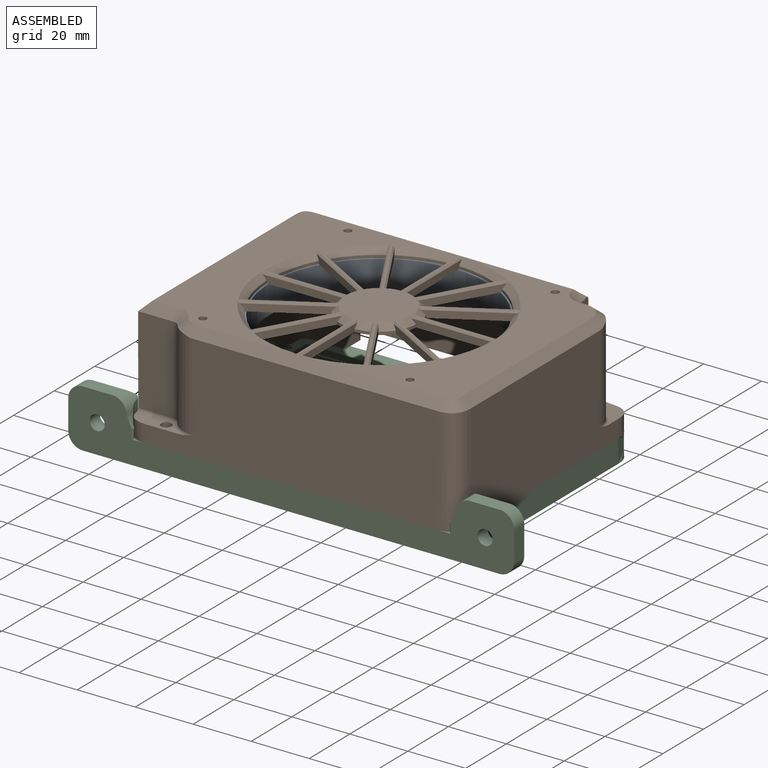
[diagram: assembled view]
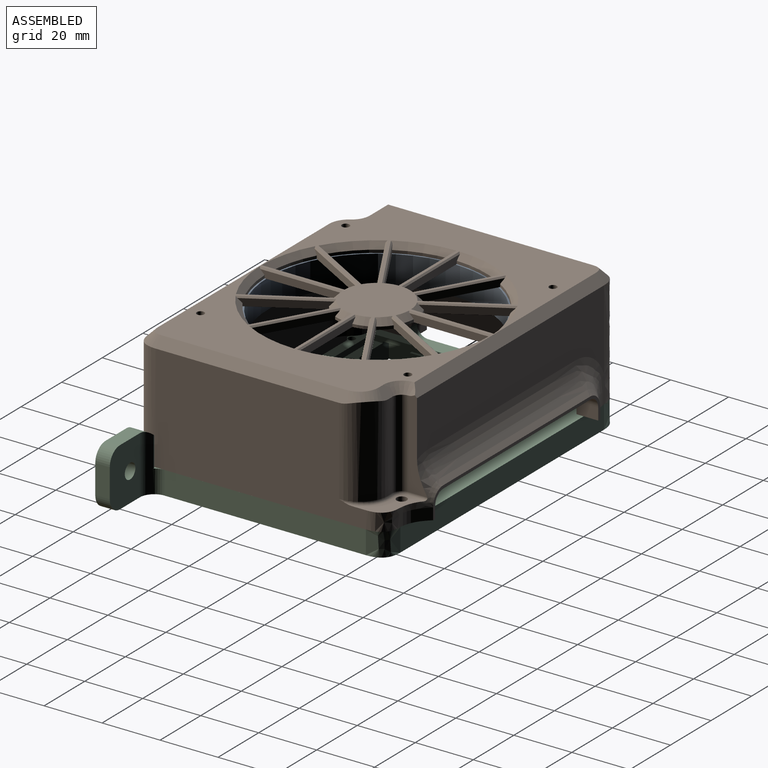
[diagram: assembled view, second angle]
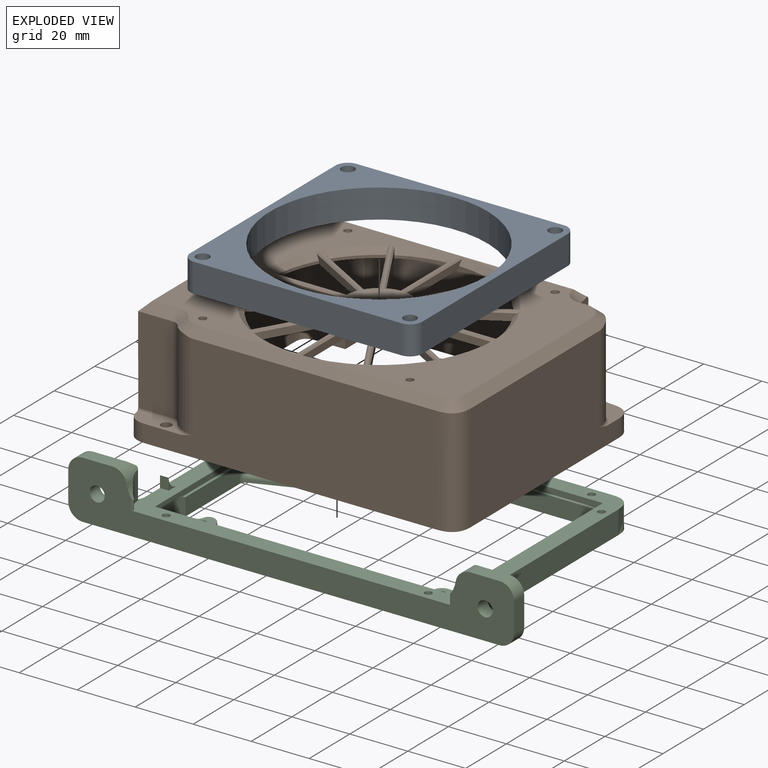
[diagram: exploded view]
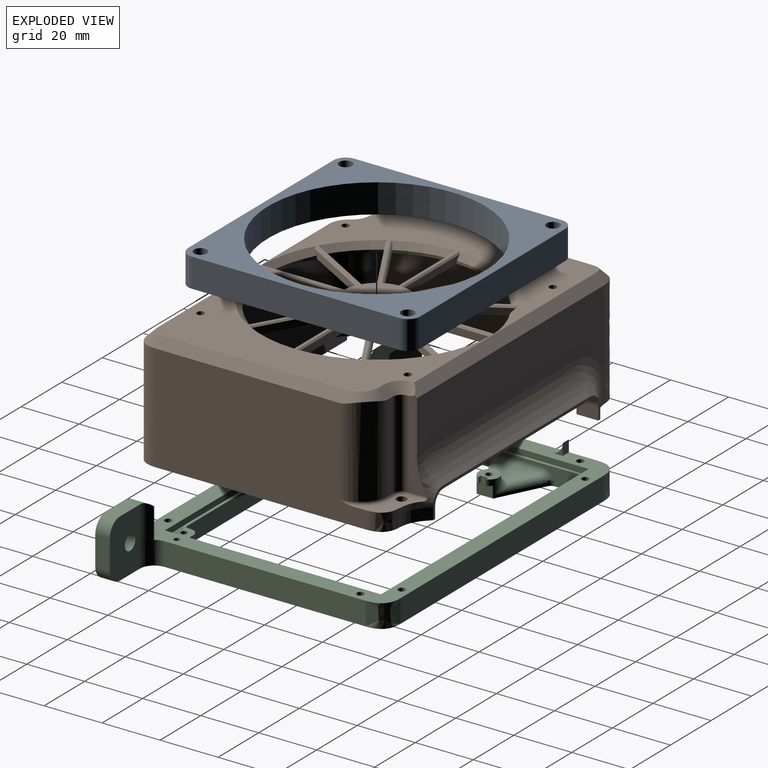
[diagram: exploded view, second angle]
ASSEMBLY  parts=3 mates=2
PART A: 15 faces, bbox 80x80x10 mm
  f0: cylinder r=37.5mm len=75mm, axis (0,0,-1), area 2356.2mm2, adj f5,f6
  f1: plane 71.5x10mm, normal (1,0,0), area 715mm2, adj f2,f5,f6,f7
  f2: cylinder r=4.25mm len=10mm, axis (0,0,-1), area 66.8mm2, adj f1,f3,f5,f6
  f3: plane 71.5x10mm, normal (0,1,0), area 715mm2, adj f2,f5,f6,f11
  f4: cylinder r=2.25mm len=10mm, axis (0,0,-1), area 141.4mm2, adj f5,f6
  f5: plane 80x80mm, normal (0,0,1), area 1903mm2, adj f0,f1,f2,f3,f4,f7,f8,f9
  f6: plane 80x80mm, normal (0,0,-1), area 1903mm2, adj f0,f1,f2,f3,f4,f7,f8,f9
  f7: cylinder r=4.25mm len=10mm, axis (0,0,-1), area 66.8mm2, adj f1,f5,f6,f8
  f8: plane 71.5x10mm, normal (0,-1,0), area 715mm2, adj f5,f6,f7,f13
  f9: cylinder r=2.25mm len=10mm, axis (0,0,-1), area 141.4mm2, adj f5,f6
  f10: plane 71.5x10mm, normal (-1,0,0), area 715mm2, adj f5,f6,f11,f13
  f11: cylinder r=4.25mm len=10mm, axis (0,0,-1), area 66.8mm2, adj f3,f5,f6,f10
  f12: cylinder r=2.25mm len=10mm, axis (0,0,-1), area 141.4mm2, adj f5,f6
  f13: cylinder r=4.25mm len=10mm, axis (0,0,-1), area 66.8mm2, adj f5,f6,f8,f10
  f14: cylinder r=2.25mm len=10mm, axis (0,0,-1), area 141.4mm2, adj f5,f6
PART B: 213 faces, bbox 99.2x127x47.5 mm
  f0: plane 92.11x27.73mm, normal (1,0,0), area 1699.4mm2, adj f1,f208,f209,f210,f211,f212
  f1: plane 92.74x3.65mm, normal (0.71,0,0.71), area 385.3mm2, adj f0,f2,f206,f207,f212
  f2: bspline ~7x7mm, area 38.2mm2, adj f1,f3,f207,f208
  f3: plane 72.5x3mm, normal (0,0.71,0.71), area 304mm2, adj f2,f4,f204,f205,f207
  f4: plane 72.51x27.71mm, normal (0,1,0), area 1381.2mm2, adj f3,f5,f201,f202,f203,f208
  f5: extruded ~37x7mm, area 88.5mm2, adj f4,f6,f195,f196,f197,f198,f199,f200
  f6: bspline ~8.45x5.3mm, area 34.2mm2, adj f5,f7,f195,f201
  f7: cone r=10mm half-angle=45deg, axis (0,-1,0), area 19mm2, adj f6,f8,f193,f194,f201
  f8: plane 54.5x9mm, normal (0,1,0), area 66.6mm2, adj f7,f9,f184,f185,f186,f187,f188,f191
  f9: plane 7.5x4mm, normal (1,0,0), area 30mm2, adj f8,f10,f184,f196
  f10: plane 72.5x35.96mm, normal (0,-1,0), area 2137.5mm2, adj f9,f11,f180,f181,f182,f183,f184,f185
  f11: extruded ~4.5x4.5mm, area 26mm2, adj f10,f12,f180,f196
  f12: plane 3.5x3.29mm, normal (1,0,0), area 11.5mm2, adj f11,f13,f180,f196
  f13: cylinder r=1.75mm len=6mm, axis (0,0,1), area 43.2mm2, adj f12,f14,f180,f196,f198
  f14: plane 93.66x35.96mm, normal (1,0,0), area 3057.5mm2, adj f13,f15,f178,f179,f180,f196
  f15: extruded ~35.96x4.5mm, area 267.4mm2, adj f14,f16,f177,f196
  f16: offset ~12x12mm, area 9.7mm2, adj f15,f17,f72,f178
  f17: plane 65.32x1.16mm, normal (0,0.71,-0.71), area 94.8mm2, adj f16,f18,f19,f72,f177
  f18: cylinder r=7.5mm len=3.21mm, axis (-0.58,0.58,0.58), area 1.6mm2, adj f17,f19,f72
  f19: cylinder r=7.5mm len=32.72mm, axis (0,0,1), area 385mm2, adj f17,f18,f20,f68,f69,f70,f71,f177
  f20: plane 32.46x1.97mm, normal (-1,0,0), area 63.8mm2, adj f19,f21,f68,f71
  f21: cylinder r=5.75mm len=32.46mm, axis (0,0,-1), area 286.5mm2, adj f20,f22,f65,f66,f67,f68
  f22: cone r=5.02mm half-angle=45deg, axis (0,0,1), area 14.4mm2, adj f21,f23,f67,f71,f72
  f23: plane 89.65x1.11mm, normal (-0.71,0,-0.71), area 130.4mm2, adj f22,f24,f64,f67,f72
  f24: plane 89.58x35.97mm, normal (-1,0,0), area 2590.3mm2, adj f23,f25,f62,f63,f66,f67,f183,f188
  f25: plane 72.3x7.5mm, normal (0,0,-1), area 542.3mm2, adj f24,f26,f62,f66
  f26: plane 82.3x9mm, normal (1,0,0), area 94.4mm2, adj f25,f27,f28,f31,f32,f61,f62,f63
  f27: plane 72.3x1.49mm, normal (0.71,0,0.71), area 151.9mm2, adj f26,f28,f61,f210
  f28: cone r=10mm half-angle=45deg, axis (-1,0,0), area 19mm2, adj f26,f27,f29,f31,f209
  f29: bspline ~8.45x5.3mm, area 34.2mm2, adj f28,f30,f208,f209
  f30: bspline ~8.01x4.2mm, area 35.9mm2, adj f29,f31,f188,f208
  f31: plane 4x1.5mm, normal (0.71,0.71,0), area 8.5mm2, adj f26,f28,f30,f188
  f32: plane 4x1.5mm, normal (0.71,-0.71,0), area 8.5mm2, adj f26,f33,f61,f196
  f33: bspline ~8.01x4.2mm, area 35.9mm2, adj f32,f34,f60,f196
  f34: extruded ~6.99x6.55mm, area 65.1mm2, adj f33,f35,f59,f60,f196
  f35: plane 14.71x14.3mm, normal (0,0,1), area 81.2mm2, adj f34,f36,f52,f53,f54,f55,f59,f60
  f36: torus R=2.25mm, axis (0,0,-1), area 7.1mm2, adj f35,f37,f52,f54
  f37: cylinder r=3.25mm len=30mm, axis (0,0,-1), area 153.2mm2, adj f36,f38,f206,f212
  f38: plane 30x1.97mm, normal (1,0,0), area 59mm2, adj f37,f39,f51,f54
  f39: plane 4.72x3.17mm, normal (0.71,0,0.71), area 13.9mm2, adj f38,f40,f51,f206,f207
  f40: cylinder r=10mm len=9.73mm, axis (-0.58,0.58,0.58), area 48.2mm2, adj f39,f41,f51,f207
  f41: plane 66.01x3.17mm, normal (0,-0.71,0.71), area 273.9mm2, adj f40,f42,f51,f59,f207
  f42: bspline ~7x7mm, area 38.2mm2, adj f41,f43,f44,f207
  f43: extruded ~37x7mm, area 420.4mm2, adj f42,f59,f196,f197
  f44: plane 85.83x3.07mm, normal (-0.71,0,0.71), area 360.2mm2, adj f42,f45,f50,f197,f207
  f45: cylinder r=10mm len=30.46mm, axis (0,0,-1), area 307.1mm2, adj f44,f46,f47,f49,f50,f197
  f46: cone r=3.25mm half-angle=45deg, axis (0,0,1), area 21.7mm2, adj f45,f49,f50,f204,f207
  f47: torus R=11mm, axis (0,0,-1), area 13mm2, adj f45,f48,f197,f198
  f48: torus R=2.25mm, axis (0,0,-1), area 4.6mm2, adj f47,f49,f198,f199
  f49: cylinder r=3.25mm len=30mm, axis (0,0,-1), area 98.9mm2, adj f45,f46,f48,f200
  f50: bspline ~9.83x8.31mm, area 31.6mm2, adj f44,f45,f46,f207
  f51: cylinder r=10mm len=30.34mm, axis (0,0,1), area 475.7mm2, adj f38,f39,f40,f41,f53,f59
  f52: cylinder r=1mm len=6.58mm, axis (-1,0,0), area 10mm2, adj f35,f36,f60,f61,f211,f212
  f53: torus R=11mm, axis (0,0,-1), area 22mm2, adj f35,f51,f54,f59
  f54: cylinder r=1mm len=1.97mm, axis (0,-1,0), area 3.1mm2, adj f35,f36,f38,f53
  f55: cylinder r=1.75mm len=6mm, axis (0,0,1), area 43.2mm2, adj f35,f56,f57,f68,f196
  f56: plane 3.5x3.36mm, normal (-1,0,0), area 11.7mm2, adj f55,f65,f68,f196
  f57: plane 3.5x3.29mm, normal (-1,0,0), area 11.5mm2, adj f55,f58,f68,f196
  f58: extruded ~4.5x4.5mm, area 26mm2, adj f57,f68,f177,f196
  f59: plane 72.7x37.2mm, normal (0,-1,0), area 2397.5mm2, adj f34,f35,f41,f43,f51,f53,f196
  f60: bspline ~8.45x5.28mm, area 18.3mm2, adj f33,f34,f35,f52,f61
  f61: cone r=10mm half-angle=45deg, axis (-1,0,0), area 19mm2, adj f26,f27,f32,f52,f60,f211
  f62: cylinder r=4mm len=7.5mm, axis (1,0,0), area 47.1mm2, adj f24,f25,f26,f63
  f63: plane 7.5x4mm, normal (0,-1,0), area 30mm2, adj f24,f26,f62,f188
  f64: offset ~12x12mm, area 9.7mm2, adj f23,f72,f182,f183
  f65: plane 10.78x4mm, normal (0,1,0), area 31.6mm2, adj f21,f26,f56,f66,f68,f196
  f66: cylinder r=4mm len=10.78mm, axis (-1,0,0), area 53.7mm2, adj f21,f24,f25,f26,f65,f67
  f67: plane 29.71x0.51mm, normal (0,1,0), area 14.8mm2, adj f21,f22,f23,f24,f66
  f68: plane 15.4x14.65mm, normal (0,0,-1), area 88.9mm2, adj f19,f20,f21,f55,f56,f57,f58,f65
  f69: cylinder r=7.5mm len=3.21mm, axis (-0.58,0.58,0.58), area 1.6mm2, adj f19,f71,f72
  f70: cylinder r=7.5mm len=1.26mm, axis (-0.58,0.58,0.58), area 0.1mm2, adj f19,f72
  f71: plane 4.03x1.16mm, normal (-0.71,0,-0.71), area 5.1mm2, adj f19,f20,f22,f69,f72
  f72: plane 108.4x80.6mm, normal (0,0,-1), area 4939.2mm2, adj f16,f17,f18,f22,f23,f64,f69,f70
  f73: cylinder r=38mm len=17.13mm, axis (0,0,1), area 17.9mm2, adj f72,f74,f78,f80
  f74: cone r=38mm half-angle=45deg, axis (0,0,1), area 52.5mm2, adj f73,f75,f77,f78,f80,f207
  f75: plane 24.7x14.46mm, normal (-0.61,0.35,0.71), area 19.8mm2, adj f74,f76,f78,f207
  f76: cone r=11.5mm half-angle=45deg, axis (0,0,-1), area 13.2mm2, adj f75,f77,f78,f79,f80,f207
  f77: plane 28.52x0.51mm, normal (0.71,0,0.71), area 19.8mm2, adj f74,f76,f80,f207
  f78: plane 23.85x13.77mm, normal (-0.87,0.5,0), area 63.6mm2, adj f72,f73,f74,f75,f76,f79
  f79: cylinder r=13.5mm len=4.87mm, axis (0,0,1), area 5.1mm2, adj f72,f76,f78,f80
  f80: plane 27.54x2.51mm, normal (1,0,0), area 63.6mm2, adj f72,f73,f74,f76,f77,f79
  f81: cylinder r=38mm len=17.13mm, axis (0,0,1), area 17.9mm2, adj f72,f82,f86,f88
  f82: cone r=38mm half-angle=45deg, axis (0,0,1), area 52.5mm2, adj f81,f83,f85,f86,f88,f207
  f83: plane 24.7x14.46mm, normal (-0.35,-0.61,0.71), area 19.8mm2, adj f82,f84,f86,f207
  f84: cone r=11.5mm half-angle=45deg, axis (0,0,-1), area 13.2mm2, adj f83,f85,f86,f87,f88,f207
  f85: plane 28.52x0.51mm, normal (0,0.71,0.71), area 19.8mm2, adj f82,f84,f88,f207
  f86: plane 23.85x13.77mm, normal (-0.5,-0.87,0), area 63.6mm2, adj f72,f81,f82,f83,f84,f87
  f87: cylinder r=13.5mm len=4.87mm, axis (0,0,1), area 5.1mm2, adj f72,f84,f86,f88
  f88: plane 27.54x2.51mm, normal (0,1,0), area 63.6mm2, adj f72,f81,f82,f84,f85,f87
  f89: cylinder r=38mm len=12.54mm, axis (0,0,1), area 17.9mm2, adj f72,f90,f94,f96
  f90: cone r=38mm half-angle=45deg, axis (0,0,1), area 52.5mm2, adj f89,f91,f93,f94,f96,f207
  f91: plane 24.7x14.44mm, normal (-0.61,-0.35,0.71), area 19.8mm2, adj f90,f92,f94,f207
  f92: cone r=11.5mm half-angle=45deg, axis (0,0,-1), area 13.2mm2, adj f91,f93,f94,f95,f96,f207
  f93: plane 24.7x14.44mm, normal (0.35,0.61,0.71), area 19.8mm2, adj f90,f92,f96,f207
  f94: plane 23.85x13.77mm, normal (-0.87,-0.5,0), area 63.6mm2, adj f72,f89,f90,f91,f92,f95
  f95: cylinder r=13.5mm len=3.56mm, axis (0,0,1), area 5.1mm2, adj f72,f92,f94,f96
  f96: plane 23.85x13.77mm, normal (0.5,0.87,0), area 63.6mm2, adj f72,f89,f90,f92,f93,f95
  f97: cylinder r=1.3mm len=3mm, axis (0,0,1), area 24.5mm2, adj f72,f207
  f98: cylinder r=1.3mm len=3mm, axis (0,0,1), area 24.5mm2, adj f72,f207
  f99: cylinder r=1.3mm len=3mm, axis (0,0,1), area 24.5mm2, adj f72,f207
  f100: cylinder r=1.3mm len=3mm, axis (0,0,1), area 24.5mm2, adj f72,f207
  f101: cylinder r=38mm len=12.54mm, axis (0,0,1), area 17.9mm2, adj f72,f102,f106,f108
  f102: cone r=38mm half-angle=45deg, axis (0,0,1), area 52.5mm2, adj f101,f103,f105,f106,f108,f207
  f103: plane 24.7x14.44mm, normal (0.35,-0.61,0.71), area 19.8mm2, adj f102,f104,f106,f207
  f104: cone r=11.5mm half-angle=45deg, axis (0,0,-1), area 13.2mm2, adj f103,f105,f106,f107,f108,f207
  f105: plane 24.7x14.44mm, normal (-0.61,0.35,0.71), area 19.8mm2, adj f102,f104,f108,f207
  f106: plane 23.85x13.77mm, normal (0.5,-0.87,0), area 63.6mm2, adj f72,f101,f102,f103,f104,f107
  f107: cylinder r=13.5mm len=3.56mm, axis (0,0,1), area 5.1mm2, adj f72,f104,f106,f108
  f108: plane 23.85x13.77mm, normal (-0.87,0.5,0), area 63.6mm2, adj f72,f101,f102,f104,f105,f107
  f109: plane 23.85x13.77mm, normal (-0.5,-0.87,0), area 63.6mm2, adj f72,f110,f112,f113,f114,f116
  f110: cone r=11.5mm half-angle=45deg, axis (0,0,-1), area 13.2mm2, adj f109,f111,f112,f115,f116,f207
  f111: plane 24.7x14.44mm, normal (0.61,0.35,0.71), area 19.8mm2, adj f110,f113,f115,f207
  f112: plane 24.7x14.44mm, normal (-0.35,-0.61,0.71), area 19.8mm2, adj f109,f110,f113,f207
  f113: cone r=38mm half-angle=45deg, axis (0,0,1), area 52.5mm2, adj f109,f111,f112,f114,f115,f207
  f114: cylinder r=38mm len=12.54mm, axis (0,0,1), area 17.9mm2, adj f72,f109,f113,f115
  f115: plane 23.85x13.77mm, normal (0.87,0.5,0), area 63.6mm2, adj f72,f110,f111,f113,f114,f116
  f116: cylinder r=13.5mm len=3.56mm, axis (0,0,1), area 5.1mm2, adj f72,f109,f110,f115
  f117: bspline ~6.72x5.54mm, area 8mm2, adj f72,f119,f178,f179
  f118: plane 9.47x1.04mm, normal (0.71,0,-0.71), area 13.1mm2, adj f72,f119,f181,f182
  f119: cone r=5.02mm half-angle=45deg, axis (0,0,1), area 10mm2, adj f72,f117,f118,f120,f179
  f120: cylinder r=5.75mm len=32.46mm, axis (0,0,-1), area 189.3mm2, adj f119,f179,f180,f181
  f121: plane 27.54x2.51mm, normal (-1,0,0), area 63.6mm2, adj f72,f122,f124,f125,f126,f128
  f122: cone r=11.5mm half-angle=45deg, axis (0,0,-1), area 13.2mm2, adj f121,f123,f124,f127,f128,f207
  f123: plane 24.7x14.46mm, normal (0.61,-0.35,0.71), area 19.8mm2, adj f122,f125,f127,f207
  f124: plane 28.52x0.51mm, normal (-0.71,0,0.71), area 19.8mm2, adj f121,f122,f125,f207
  f125: cone r=38mm half-angle=45deg, axis (0,0,1), area 52.5mm2, adj f121,f123,f124,f126,f127,f207
  f126: cylinder r=38mm len=17.13mm, axis (0,0,1), area 17.9mm2, adj f72,f121,f125,f127
  f127: plane 23.85x13.77mm, normal (0.87,-0.5,0), area 63.6mm2, adj f72,f122,f123,f125,f126,f128
  f128: cylinder r=13.5mm len=4.87mm, axis (0,0,1), area 5.1mm2, adj f72,f121,f122,f127
  f129: plane 23.85x13.77mm, normal (-0.87,-0.5,0), area 63.6mm2, adj f72,f130,f132,f133,f134,f136
  f130: cone r=11.5mm half-angle=45deg, axis (0,0,-1), area 13.2mm2, adj f129,f131,f132,f135,f136,f207
  f131: plane 28.52x0.51mm, normal (0.71,0,0.71), area 19.8mm2, adj f130,f133,f135,f207
  f132: plane 24.7x14.46mm, normal (-0.61,-0.35,0.71), area 19.8mm2, adj f129,f130,f133,f207
  f133: cone r=38mm half-angle=45deg, axis (0,0,1), area 52.5mm2, adj f129,f131,f132,f134,f135,f207
  f134: cylinder r=38mm len=17.13mm, axis (0,0,1), area 17.9mm2, adj f72,f129,f133,f135
  f135: plane 27.54x2.51mm, normal (1,0,0), area 63.6mm2, adj f72,f130,f131,f133,f134,f136
  f136: cylinder r=13.5mm len=4.87mm, axis (0,0,1), area 5.1mm2, adj f72,f129,f130,f135
  f137: cylinder r=38mm len=17.13mm, axis (0,0,1), area 17.9mm2, adj f72,f138,f142,f144
  f138: cone r=38mm half-angle=45deg, axis (0,0,1), area 52.5mm2, adj f137,f139,f141,f142,f144,f207
  f139: plane 28.52x0.51mm, normal (-0.71,0,0.71), area 19.8mm2, adj f138,f140,f142,f207
  f140: cone r=11.5mm half-angle=45deg, axis (0,0,-1), area 13.2mm2, adj f139,f141,f142,f143,f144,f207
  f141: plane 24.7x14.46mm, normal (0.61,0.35,0.71), area 19.8mm2, adj f138,f140,f144,f207
  f142: plane 27.54x2.51mm, normal (-1,0,0), area 63.6mm2, adj f72,f137,f138,f139,f140,f143
  f143: cylinder r=13.5mm len=4.87mm, axis (0,0,1), area 5.1mm2, adj f72,f140,f142,f144
  f144: plane 23.85x13.77mm, normal (0.87,0.5,0), area 63.6mm2, adj f72,f137,f138,f140,f141,f143
  f145: plane 23.85x13.77mm, normal (-0.5,0.87,0), area 63.6mm2, adj f72,f146,f148,f149,f150,f152
  f146: cone r=11.5mm half-angle=45deg, axis (0,0,-1), area 13.2mm2, adj f145,f147,f148,f151,f152,f207
  f147: plane 28.52x0.51mm, normal (0,-0.71,0.71), area 19.8mm2, adj f146,f149,f151,f207
  f148: plane 24.7x14.46mm, normal (-0.35,0.61,0.71), area 19.8mm2, adj f145,f146,f149,f207
  f149: cone r=38mm half-angle=45deg, axis (0,0,1), area 52.5mm2, adj f145,f147,f148,f150,f151,f207
  f150: cylinder r=38mm len=17.13mm, axis (0,0,1), area 17.9mm2, adj f72,f145,f149,f151
  f151: plane 27.54x2.51mm, normal (0,-1,0), area 63.6mm2, adj f72,f146,f147,f149,f150,f152
  f152: cylinder r=13.5mm len=4.87mm, axis (0,0,1), area 5.1mm2, adj f72,f145,f146,f151
  f153: plane 27.54x2.51mm, normal (0,-1,0), area 63.6mm2, adj f72,f154,f156,f157,f158,f160
  f154: cone r=11.5mm half-angle=45deg, axis (0,0,-1), area 13.2mm2, adj f153,f155,f156,f159,f160,f207
  f155: plane 24.7x14.46mm, normal (0.35,0.61,0.71), area 19.8mm2, adj f154,f157,f159,f207
  f156: plane 28.52x0.51mm, normal (0,-0.71,0.71), area 19.8mm2, adj f153,f154,f157,f207
  f157: cone r=38mm half-angle=45deg, axis (0,0,1), area 52.5mm2, adj f153,f155,f156,f158,f159,f207
  f158: cylinder r=38mm len=17.13mm, axis (0,0,1), area 17.9mm2, adj f72,f153,f157,f159
  f159: plane 23.85x13.77mm, normal (0.5,0.87,0), area 63.6mm2, adj f72,f154,f155,f157,f158,f160
  f160: cylinder r=13.5mm len=4.87mm, axis (0,0,1), area 5.1mm2, adj f72,f153,f154,f159
  f161: cylinder r=38mm len=17.13mm, axis (0,0,1), area 17.9mm2, adj f72,f162,f166,f168
  f162: cone r=38mm half-angle=45deg, axis (0,0,1), area 52.5mm2, adj f161,f163,f165,f166,f168,f207
  f163: plane 28.52x0.51mm, normal (0,0.71,0.71), area 19.8mm2, adj f162,f164,f166,f207
  f164: cone r=11.5mm half-angle=45deg, axis (0,0,-1), area 13.2mm2, adj f163,f165,f166,f167,f168,f207
  f165: plane 24.7x14.46mm, normal (0.35,-0.61,0.71), area 19.8mm2, adj f162,f164,f168,f207
  f166: plane 27.54x2.51mm, normal (0,1,0), area 63.6mm2, adj f72,f161,f162,f163,f164,f167
  f167: cylinder r=13.5mm len=4.87mm, axis (0,0,1), area 5.1mm2, adj f72,f164,f166,f168
  f168: plane 23.85x13.77mm, normal (0.5,-0.87,0), area 63.6mm2, adj f72,f161,f162,f164,f165,f167
  f169: plane 23.85x13.77mm, normal (0.87,-0.5,0), area 63.6mm2, adj f72,f170,f172,f173,f174,f176
  f170: cone r=11.5mm half-angle=45deg, axis (0,0,-1), area 13.2mm2, adj f169,f171,f172,f175,f176,f207
  f171: plane 24.7x14.44mm, normal (-0.35,0.61,0.71), area 19.8mm2, adj f170,f173,f175,f207
  f172: plane 24.7x14.44mm, normal (0.61,-0.35,0.71), area 19.8mm2, adj f169,f170,f173,f207
  f173: cone r=38mm half-angle=45deg, axis (0,0,1), area 52.5mm2, adj f169,f171,f172,f174,f175,f207
  f174: cylinder r=38mm len=12.54mm, axis (0,0,1), area 17.9mm2, adj f72,f169,f173,f175
  f175: plane 23.85x13.77mm, normal (-0.5,0.87,0), area 63.6mm2, adj f72,f170,f171,f173,f174,f176
  f176: cylinder r=13.5mm len=3.56mm, axis (0,0,1), area 5.1mm2, adj f72,f169,f170,f175
  f177: plane 72.5x35.97mm, normal (0,1,0), area 2307.1mm2, adj f15,f17,f19,f58,f68,f196
  f178: plane 85.37x1.09mm, normal (0.71,0,-0.71), area 124.5mm2, adj f14,f16,f72,f117,f179
  f179: cylinder r=7.5mm len=32.57mm, axis (0,0,-1), area 247.5mm2, adj f14,f117,f119,f120,f178,f180
  f180: plane 21.62x7.15mm, normal (0,0,-1), area 83mm2, adj f10,f11,f12,f13,f14,f120,f179,f181
  f181: plane 32.46x9.47mm, normal (1,0,0), area 307.3mm2, adj f10,f118,f120,f180
  f182: plane 70.75x1.04mm, normal (0,-0.71,-0.71), area 102.9mm2, adj f10,f64,f72,f118
  f183: extruded ~35.96x4.5mm, area 267.4mm2, adj f10,f24,f64,f188
  f184: cylinder r=4mm len=7.5mm, axis (0,1,0), area 47.1mm2, adj f8,f9,f10,f185
  f185: plane 44.5x7.5mm, normal (0,0,-1), area 333.7mm2, adj f8,f10,f184,f186
  f186: cylinder r=4mm len=7.5mm, axis (0,-1,0), area 47.1mm2, adj f8,f10,f185,f187
  f187: plane 7.5x4mm, normal (-1,0,0), area 30mm2, adj f8,f10,f186,f188
  f188: plane 22.9x22.9mm, normal (0,0,-1), area 114.2mm2, adj f8,f10,f24,f26,f30,f31,f63,f183
  f189: bspline ~8.01x4.2mm, area 35.9mm2, adj f188,f190,f191,f208
  f190: bspline ~8.45x5.3mm, area 34.2mm2, adj f189,f192,f203,f208
  f191: plane 4x1.5mm, normal (0.71,0.71,0), area 8.5mm2, adj f8,f188,f189,f192
  f192: cone r=10mm half-angle=45deg, axis (0,-1,0), area 19mm2, adj f8,f190,f191,f193,f203
  f193: plane 44.5x1.49mm, normal (0,0.71,0.71), area 93.5mm2, adj f7,f8,f192,f202
  f194: plane 4x1.5mm, normal (-0.71,0.71,0), area 8.5mm2, adj f7,f8,f195,f196
  f195: bspline ~8.01x4.2mm, area 35.9mm2, adj f5,f6,f194,f196
  f196: plane 120.2x92.4mm, normal (0,0,-1), area 587.1mm2, adj f5,f8,f9,f10,f11,f12,f13,f14
  f197: plane 100.5x37.2mm, normal (-1,0,0), area 3210.1mm2, adj f5,f43,f44,f45,f47,f196,f198
  f198: plane 18.63x5.95mm, normal (0,0,1), area 62.5mm2, adj f5,f13,f47,f48,f197,f199
  f199: cylinder r=1mm len=11.95mm, axis (0,1,0), area 18.7mm2, adj f5,f48,f198,f200
  f200: plane 30x11.95mm, normal (-1,0,0), area 358.4mm2, adj f5,f49,f199,f204
  f201: bspline ~14x12.67mm, area 119.7mm2, adj f4,f6,f7,f202
  f202: bspline ~44.5x8.49mm, area 420.1mm2, adj f4,f193,f201,f203
  f203: bspline ~15.07x15.07mm, area 119.7mm2, adj f4,f190,f192,f202
  f204: plane 11.97x3.03mm, normal (-0.71,0,0.71), area 44.4mm2, adj f3,f46,f200,f205,f207
  f205: bspline ~3.22x3mm, area 0.4mm2, adj f3,f5,f204
  f206: cone r=3.25mm half-angle=45deg, axis (0,0,1), area 37.5mm2, adj f1,f37,f39,f207,f212
  f207: plane 112.09x84.29mm, normal (0,0,1), area 4237.4mm2, adj f1,f2,f3,f39,f40,f41,f42,f44
  f208: extruded ~37x7mm, area 413.5mm2, adj f0,f2,f4,f29,f30,f188,f189,f190
  f209: bspline ~15.07x15.07mm, area 119.7mm2, adj f0,f28,f29,f210
  f210: bspline ~72.3x8.49mm, area 682.6mm2, adj f0,f27,f209,f211
  f211: bspline ~13.7x12.36mm, area 58.9mm2, adj f0,f52,f61,f210,f212
  f212: plane 31.31x7.04mm, normal (0,-1,0), area 104.3mm2, adj f0,f1,f37,f52,f206,f211
PART C: 98 faces, bbox 87x154.3x20.9 mm
  f0: plane 143.77x86.5mm, normal (0,0,-1), area 2858.3mm2, adj f3,f9,f10,f11,f12,f14,f15,f16
  f1: plane 2x1.18mm, normal (-1,0,0), area 2.4mm2, adj f36,f37,f38,f56
  f2: plane 2x1.14mm, normal (1,0,0), area 2.3mm2, adj f36,f37,f38,f55
  f3: plane 59x6mm, normal (0,-1,0), area 245mm2, adj f0,f5,f25,f31,f47,f48,f49,f50
  f4: plane 74.5x2mm, normal (0,-1,0), area 144mm2, adj f5,f6,f8,f13,f31,f32,f33
  f5: plane 102.3x74.5mm, normal (0,0,1), area 426.6mm2, adj f3,f4,f6,f7,f8,f14,f15,f16
  f6: plane 102.3x2mm, normal (-1,0,0), area 204.6mm2, adj f4,f5,f7,f13
  f7: plane 74.5x2mm, normal (0,1,0), area 149mm2, adj f5,f6,f8,f13
  f8: plane 102.3x2mm, normal (1,0,0), area 204.6mm2, adj f4,f5,f7,f13
  f9: plane 69.5x8mm, normal (0,-1,0), area 556mm2, adj f0,f13,f29,f83
  f10: plane 100.3x8mm, normal (1,0,0), area 802.4mm2, adj f0,f13,f29,f30
  f11: plane 69.5x12mm, normal (0,1,0), area 432.9mm2, adj f0,f13,f30,f82,f88,f89,f91,f92
  f12: plane 153.78x20.01mm, normal (-1,0,0), area 1656.7mm2, adj f0,f13,f65,f66,f67,f68,f69,f70
  f13: plane 117.14x86.99mm, normal (0,0,1), area 2185.7mm2, adj f4,f6,f7,f8,f9,f10,f11,f12
  f14: plane 65.53x6mm, normal (0,1,0), area 393.2mm2, adj f0,f5,f24,f28
  f15: plane 98.3x6mm, normal (-1,0,0), area 589.8mm2, adj f0,f5,f24,f25
  f16: cylinder r=4.25mm len=6mm, axis (0,0,1), area 33.1mm2, adj f0,f5,f17,f44
  f17: plane 6x0.77mm, normal (0,-1,0), area 4.6mm2, adj f0,f5,f16,f26
  f18: plane 73.21x6mm, normal (1,0,0), area 439.2mm2, adj f0,f5,f26,f27
  f19: plane 6x0.87mm, normal (0,1,0), area 5.2mm2, adj f0,f5,f20,f27
  f20: cylinder r=3.1mm len=6mm, axis (0,0,1), area 29.2mm2, adj f0,f5,f19,f22
  f21: cylinder r=1.25mm len=6mm, axis (0,0,1), area 47.1mm2, adj f0,f5
  f22: plane 6x3.39mm, normal (1,0,0), area 20.4mm2, adj f0,f5,f20,f28
  f23: cylinder r=1.1mm len=6mm, axis (0,0,1), area 41.5mm2, adj f0,f5
  f24: bspline ~6.6x1mm, area 9.7mm2, adj f0,f5,f14,f15
  f25: bspline ~6.6x1mm, area 9.7mm2, adj f0,f3,f5,f15
  f26: bspline ~6.6x1mm, area 9.7mm2, adj f0,f5,f17,f18
  f27: bspline ~6.6x1mm, area 9.7mm2, adj f0,f5,f18,f19
  f28: bspline ~6.6x1mm, area 9.7mm2, adj f0,f5,f14,f22
  f29: bspline ~8.8x7mm, area 90.9mm2, adj f0,f9,f10,f13
  f30: bspline ~8.8x7mm, area 90.9mm2, adj f0,f10,f11,f13
  f31: plane 6.5x4mm, normal (-1,0,0), area 25.5mm2, adj f0,f3,f4,f5,f33,f35
  f32: plane 14x6.5mm, normal (1,0,0), area 85.5mm2, adj f0,f4,f5,f33,f34,f35
  f33: plane 10x3mm, normal (0,0,-1), area 30mm2, adj f4,f31,f32,f35
  f34: cylinder r=2mm len=6mm, axis (0,0,1), area 17.1mm2, adj f0,f5,f32,f44
  f35: plane 10x6.5mm, normal (0,-1,0), area 65mm2, adj f0,f31,f32,f33
  f36: plane 7x6.76mm, normal (0,0,1), area 30.9mm2, adj f1,f2,f37,f38,f39
  f37: cylinder r=3.5mm len=7mm, axis (0,0,-1), area 44.6mm2, adj f0,f1,f2,f36,f38,f40,f41,f52
  f38: plane 6x5.62mm, normal (0,-1,0), area 27.7mm2, adj f0,f1,f2,f36,f37,f55,f56
  f39: cylinder r=1.15mm len=6mm, axis (0,0,-1), area 43.4mm2, adj f0,f36
  f40: plane 15.02x7.57mm, normal (0.89,-0.45,0), area 16.8mm2, adj f0,f37,f45,f51
  f41: plane 1.32x0.04mm, normal (0.82,-0.57,0), area 0mm2, adj f0,f37,f42,f46,f52
  f42: plane 14.36x5.63mm, normal (-0.93,-0.36,0), area 15.4mm2, adj f0,f41,f46,f47
  f43: plane 14.53x8.49mm, normal (0,0,1), area 83.8mm2, adj f45,f46,f49,f53
  f44: cylinder r=2mm len=6mm, axis (0,0,-1), area 20.4mm2, adj f0,f5,f16,f34
  f45: cylinder r=2mm len=15.92mm, axis (0.45,0.89,0), area 41.4mm2, adj f40,f43,f50,f54
  f46: cylinder r=2mm len=15.09mm, axis (0.36,-0.93,0), area 37.4mm2, adj f41,f42,f43,f48,f52
  f47: cylinder r=2mm len=1.86mm, axis (0,0,-1), area 2.4mm2, adj f0,f3,f42,f48
  f48: bspline ~5.04x4.7mm, area 12.6mm2, adj f3,f46,f47,f49
  f49: cylinder r=2mm len=14.53mm, axis (1,0,0), area 45.7mm2, adj f3,f43,f48,f50
  f50: bspline ~4.68x4mm, area 12.7mm2, adj f3,f45,f49,f51
  f51: cylinder r=2mm len=1.79mm, axis (0,0,-1), area 2.2mm2, adj f0,f3,f40,f50
  f52: bspline ~5.93x4mm, area 9.1mm2, adj f37,f41,f46,f53
  f53: torus R=5.5mm, axis (0,0,-1), area 18.5mm2, adj f37,f43,f52,f54
  f54: bspline ~5.93x4mm, area 9.1mm2, adj f37,f45,f53
  f55: plane 1.45x1.14mm, normal (0,0,-1), area 1mm2, adj f2,f37,f38
  f56: plane 1.55x1.18mm, normal (0,0,-1), area 1.1mm2, adj f1,f37,f38
  f57: cylinder r=1.25mm len=8mm, axis (0,0,1), area 62.8mm2, adj f0,f13
  f58: cylinder r=1.25mm len=8mm, axis (0,0,1), area 62.8mm2, adj f0,f13
  f59: cylinder r=1.25mm len=8mm, axis (0,0,1), area 62.8mm2, adj f0,f13
  f60: cylinder r=1.25mm len=8mm, axis (0,0,1), area 62.8mm2, adj f0,f13
  f61: cylinder r=1.25mm len=8mm, axis (0,0,1), area 62.8mm2, adj f0,f13
  f62: cylinder r=1.25mm len=8mm, axis (0,0,1), area 62.8mm2, adj f0,f13
  f63: cylinder r=1mm len=8mm, axis (0,0,1), area 50.3mm2, adj f0,f13
  f64: plane 20x14.74mm, normal (1,0,0), area 262.8mm2, adj f0,f67,f68,f69,f70,f71,f83
  f65: cylinder r=10mm len=4.68mm, axis (1,0,0), area 10.2mm2, adj f12,f66,f72,f87
  f66: cylinder r=5mm len=6.78mm, axis (1,0,0), area 40.4mm2, adj f12,f65,f69,f72,f83,f84
  f67: plane 10x5mm, normal (0,-1,0), area 50mm2, adj f12,f64,f70,f71
  f68: cylinder r=2.6mm len=5.2mm, axis (-1,0,0), area 81.7mm2, adj f12,f64
  f69: plane 10.2x5.02mm, normal (0,0,1), area 51mm2, adj f12,f64,f66,f71,f83
  f70: cylinder r=5mm len=5mm, axis (-1,0,0), area 39.3mm2, adj f0,f12,f64,f67
  f71: cylinder r=5mm len=5mm, axis (-1,0,0), area 39.3mm2, adj f12,f64,f67,f69
  f72: extruded ~9.64x5.57mm, area 46.4mm2, adj f13,f65,f66,f84,f87
  f73: plane 20x14.74mm, normal (1,0,0), area 262.8mm2, adj f0,f76,f77,f78,f79,f80,f82
  f74: cylinder r=10mm len=4.68mm, axis (1,0,0), area 10.2mm2, adj f12,f75,f81,f86
  f75: cylinder r=5mm len=6.78mm, axis (1,0,0), area 40.4mm2, adj f12,f74,f78,f81,f82,f85
  f76: plane 10x5mm, normal (0,1,0), area 50mm2, adj f12,f73,f79,f80
  f77: cylinder r=2.6mm len=5.2mm, axis (-1,0,0), area 81.7mm2, adj f12,f73
  f78: plane 10.2x5.02mm, normal (0,0,1), area 51mm2, adj f12,f73,f75,f80,f82
  f79: cylinder r=5mm len=5mm, axis (-1,0,0), area 39.3mm2, adj f0,f12,f73,f76
  f80: cylinder r=5mm len=5mm, axis (-1,0,0), area 39.3mm2, adj f12,f73,f76,f78
  f81: extruded ~9.64x5.57mm, area 46.4mm2, adj f13,f74,f75,f85,f86
  f82: cylinder r=5mm len=20mm, axis (0,0,-1), area 113.4mm2, adj f0,f11,f13,f73,f75,f78,f85
  f83: cylinder r=5mm len=20mm, axis (0,0,-1), area 113.4mm2, adj f0,f9,f13,f64,f66,f69,f84
  f84: cylinder r=0.5mm len=10.7mm, axis (0,0,-1), area 12.2mm2, adj f13,f66,f72,f83
  f85: cylinder r=0.5mm len=10.7mm, axis (0,0,-1), area 12.2mm2, adj f13,f75,f81,f82
  f86: cylinder r=0.5mm len=3.81mm, axis (0,0,-1), area 4.6mm2, adj f12,f13,f74,f81
  f87: cylinder r=0.5mm len=3.81mm, axis (0,0,-1), area 4.6mm2, adj f12,f13,f65,f72
  f88: cylinder r=4mm len=4mm, axis (0,1,0), area 18.8mm2, adj f11,f13,f89,f90
  f89: plane 4x3mm, normal (1,0,0), area 12mm2, adj f11,f13,f88,f90
  f90: plane 4x4mm, normal (0,-1,0), area 3.4mm2, adj f13,f88,f89
  f91: plane 4x3mm, normal (-1,0,0), area 12mm2, adj f11,f13,f92,f93
  f92: cylinder r=4mm len=4mm, axis (0,1,0), area 18.8mm2, adj f11,f13,f91,f93
  f93: plane 4x4mm, normal (0,-1,0), area 3.4mm2, adj f13,f91,f92
  f94: plane 4x4mm, normal (-1,0,0), area 16mm2, adj f0,f11,f96,f97
  f95: plane 4x4mm, normal (1,0,0), area 16mm2, adj f0,f11,f96,f97
  f96: plane 32.5x4mm, normal (0,0,-1), area 130mm2, adj f11,f94,f95,f97
  f97: plane 32.5x4mm, normal (0,1,0), area 130mm2, adj f0,f94,f95,f96
PLACE A t=(-27.83,-28.75,23.82)mm
PLACE B rot(axis=(0,0,1),90deg) t=(-27.83,-28.75,-5.18)mm
PLACE C rot(axis=(0,0,1),90deg) t=(-27.83,-28.75,-5.18)mm
MATE fastened A.f2 <-> B.f100  axis (0,0,1) through (7.92,7,33.82)mm
MATE fastened B.f188 <-> C.f13  axis (0,0,1) through (-83.23,12.75,-3.18)mm
